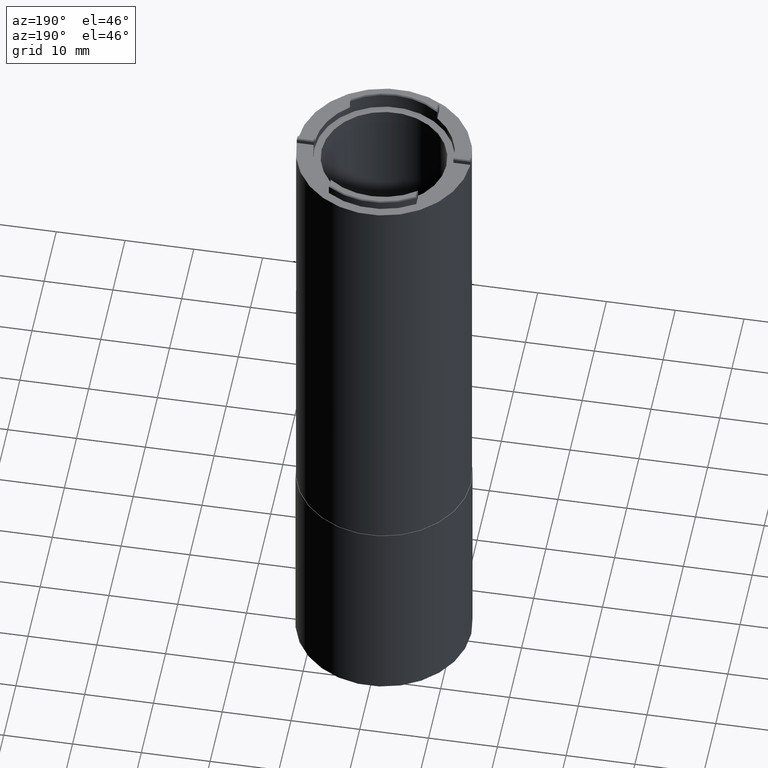
[diagram: clean part render]
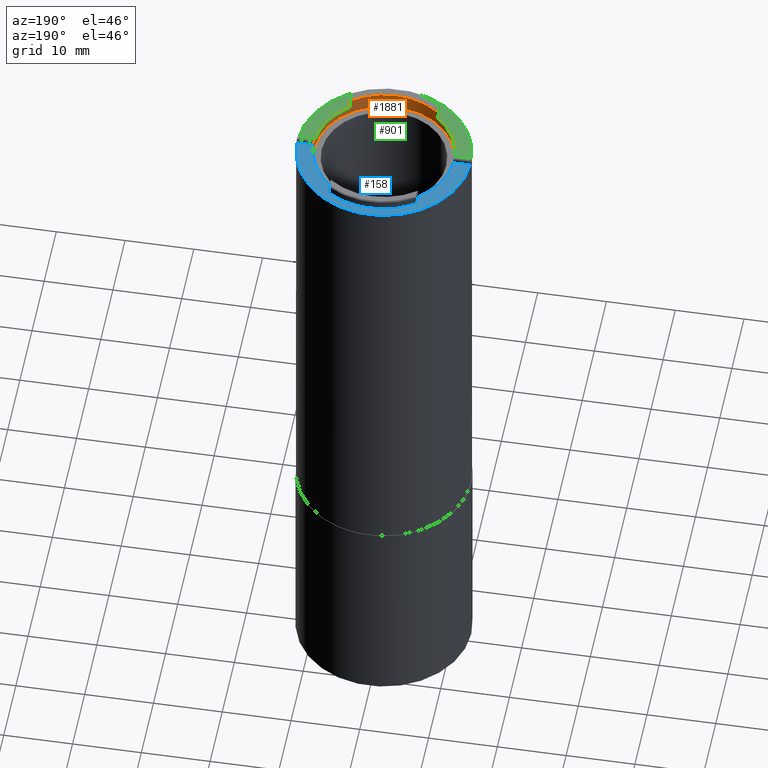
[diagram: same view with three faces highlighted in distinct colors, each labeled with its STEP entity id]
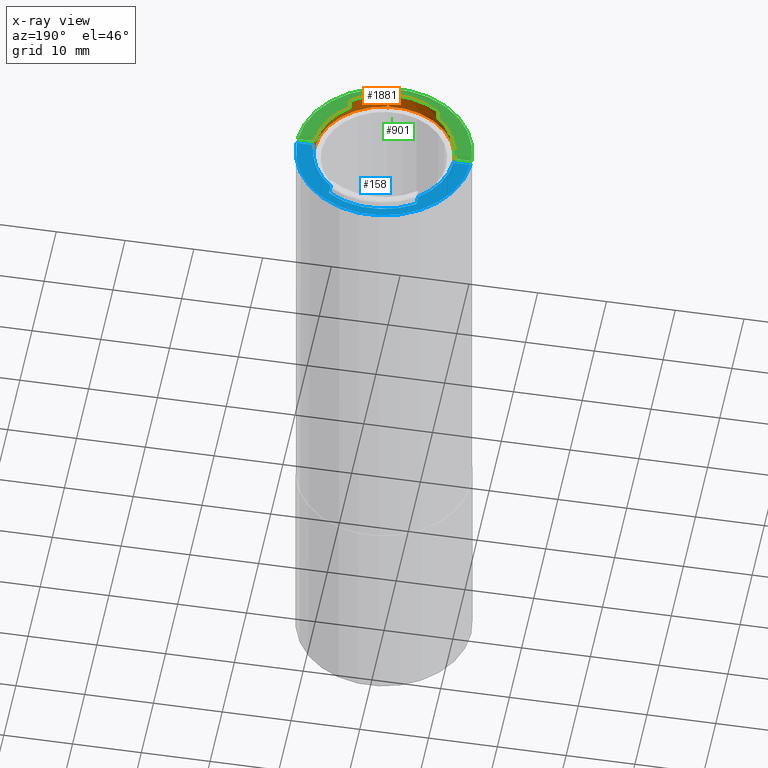
[diagram: x-ray of the same camera — body ghosted, the three highlighted faces saturated]
A machine part, auxiliary view with three faces highlighted in distinct colors.
The next image is the same camera in x-ray (body ghosted, the three faces saturated) — at least one of them is partly hidden behind the body in this view.
Their STEP definitions:

[orange] entity #1881 — the highlighted cylindrical surface (partial cylindrical patch) has radius 10.16 mm, axis along (-0, -0, 1).
#1 = CIRCLE ( 'NONE', #582, 10.16000000000000014 ) ;
#8 = CARTESIAN_POINT ( 'NONE',  ( 0.000000000000000000, 0.000000000000000000, 95.89000000000000057 ) ) ;
#35 = EDGE_CURVE ( 'NONE', #1388, #1761, #1072, .T. ) ;
#39 = AXIS2_PLACEMENT_3D ( 'NONE', #783, #476, #1195 ) ;
#57 = CARTESIAN_POINT ( 'NONE',  ( 10.15653467741868177, -0.2700102718487127906, 97.73998972815131481 ) ) ;
#60 = VERTEX_POINT ( 'NONE', #262 ) ;
#96 = CARTESIAN_POINT ( 'NONE',  ( 0.000000000000000000, 0.000000000000000000, 98.27999999999998693 ) ) ;
#107 = CARTESIAN_POINT ( 'NONE',  ( -10.16000000000000014, 1.244241147933710864E-15, 95.89000000000000057 ) ) ;
#170 = DIRECTION ( 'NONE',  ( -0.000000000000000000, -0.000000000000000000, 1.000000000000000000 ) ) ;
#255 = CARTESIAN_POINT ( 'NONE',  ( 0.000000000000000000, 0.000000000000000000, 97.03000000000000114 ) ) ;
#262 = CARTESIAN_POINT ( 'NONE',  ( -10.15761783096804649, -0.2200000000000026379, 97.79000000000000625 ) ) ;
#272 = EDGE_CURVE ( 'NONE', #60, #1890, #1759, .T. ) ;
#307 = EDGE_CURVE ( 'NONE', #1105, #1844, #1112, .T. ) ;
#330 = DIRECTION ( 'NONE',  ( 1.000000000000000000, 0.000000000000000000, 0.000000000000000000 ) ) ;
#387 = CIRCLE ( 'NONE', #39, 10.16000000000000014 ) ;
#398 = VERTEX_POINT ( 'NONE', #1518 ) ;
#408 = VECTOR ( 'NONE', #1486, 1000.000000000000000 ) ;
#418 = DIRECTION ( 'NONE',  ( -0.000000000000000000, -0.000000000000000000, -1.000000000000000000 ) ) ;
#445 = AXIS2_PLACEMENT_3D ( 'NONE', #548, #418, #1133 ) ;
#452 = CARTESIAN_POINT ( 'NONE',  ( -10.16000000000000014, 1.244241147933710864E-15, 95.89000000000000057 ) ) ;
#458 = CARTESIAN_POINT ( 'NONE',  ( 10.15761783096804649, -0.2200000000000095768, 97.79000000000000625 ) ) ;
#473 = ORIENTED_EDGE ( 'NONE', *, *, #1843, .T. ) ;
#476 = DIRECTION ( 'NONE',  ( 0.000000000000000000, 0.000000000000000000, 1.000000000000000000 ) ) ;
#491 = CARTESIAN_POINT ( 'NONE',  ( 10.15326056003685906, -0.3699999999999999956, 97.64000000000000057 ) ) ;
#499 = CARTESIAN_POINT ( 'NONE',  ( 10.15326056003685906, -0.3699999999999999956, 97.64000000000000057 ) ) ;
#510 = EDGE_CURVE ( 'NONE', #1148, #1844, #1327, .T. ) ;
#519 = CARTESIAN_POINT ( 'NONE',  ( 10.16000000000000014, 0.000000000000000000, 95.89000000000000057 ) ) ;
#548 = CARTESIAN_POINT ( 'NONE',  ( 0.000000000000000000, 0.000000000000000000, 97.79000000000000625 ) ) ;
#582 = AXIS2_PLACEMENT_3D ( 'NONE', #733, #1619, #1154 ) ;
#606 = DIRECTION ( 'NONE',  ( 1.000000000000000000, 0.000000000000000000, 0.000000000000000000 ) ) ;
#612 = CARTESIAN_POINT ( 'NONE',  ( -10.15653467741868354, -0.2700102718486968589, 97.73998972815131481 ) ) ;
#615 = LINE ( 'NONE', #1059, #1283 ) ;
#639 = ORIENTED_EDGE ( 'NONE', *, *, #1424, .F. ) ;
#640 = EDGE_CURVE ( 'NONE', #60, #1761, #1132, .T. ) ;
#643 = ORIENTED_EDGE ( 'NONE', *, *, #713, .T. ) ;
#650 = CARTESIAN_POINT ( 'NONE',  ( -6.349999999999996092, -7.931147457965970204, 95.89000000000000057 ) ) ;
#690 = CYLINDRICAL_SURFACE ( 'NONE', #1496, 10.16000000000000014 ) ;
#701 = DIRECTION ( 'NONE',  ( 1.000000000000000000, 0.000000000000000000, 0.000000000000000000 ) ) ;
#713 = EDGE_CURVE ( 'NONE', #1148, #1596, #1348, .T. ) ;
#733 = CARTESIAN_POINT ( 'NONE',  ( 0.000000000000000000, 0.000000000000000000, 97.79000000000000625 ) ) ;
#755 = CARTESIAN_POINT ( 'NONE',  ( -6.349999999999996092, -7.931147457965970204, 97.03000000000000114 ) ) ;
#763 = CARTESIAN_POINT ( 'NONE',  ( 0.000000000000000000, 0.000000000000000000, 97.03000000000000114 ) ) ;
#780 = VERTEX_POINT ( 'NONE', #872 ) ;
#783 = CARTESIAN_POINT ( 'NONE',  ( 0.000000000000000000, 0.000000000000000000, 95.89000000000000057 ) ) ;
#784 = FACE_OUTER_BOUND ( 'NONE', #1762, .T. ) ;
#831 = EDGE_CURVE ( 'NONE', #398, #1596, #834, .T. ) ;
#833 = ORIENTED_EDGE ( 'NONE', *, *, #1520, .T. ) ;
#834 = LINE ( 'NONE', #1909, #1300 ) ;
#836 = ORIENTED_EDGE ( 'NONE', *, *, #1878, .F. ) ;
#853 = ORIENTED_EDGE ( 'NONE', *, *, #1361, .F. ) ;
#872 = CARTESIAN_POINT ( 'NONE',  ( 10.15326056003685906, -0.3699999999999999956, 97.03000000000000114 ) ) ;
#893 = VERTEX_POINT ( 'NONE', #458 ) ;
#894 = CIRCLE ( 'NONE', #1194, 10.16000000000000014 ) ;
#896 = CARTESIAN_POINT ( 'NONE',  ( -10.15761783096804649, -0.2200000000000026379, 97.79000000000000625 ) ) ;
#905 = ORIENTED_EDGE ( 'NONE', *, *, #640, .F. ) ;
#979 = VERTEX_POINT ( 'NONE', #1521 ) ;
#1033 = LINE ( 'NONE', #1341, #408 ) ;
#1039 = DIRECTION ( 'NONE',  ( 0.000000000000000000, 0.000000000000000000, 1.000000000000000000 ) ) ;
#1043 = CARTESIAN_POINT ( 'NONE',  ( -10.15326056003685906, -0.3699999999999999956, 95.89000000000000057 ) ) ;
#1044 = CARTESIAN_POINT ( 'NONE',  ( -10.15508222736988486, -0.3200111808489128351, 97.68998881915108257 ) ) ;
#1059 = CARTESIAN_POINT ( 'NONE',  ( 10.16000000000000014, 0.000000000000000000, 95.89000000000000057 ) ) ;
#1063 = ORIENTED_EDGE ( 'NONE', *, *, #307, .T. ) ;
#1072 = LINE ( 'NONE', #107, #1430 ) ;
#1102 = CARTESIAN_POINT ( 'NONE',  ( -6.349999999999996092, -7.931147457965970204, 98.28000000000000114 ) ) ;
#1105 = VERTEX_POINT ( 'NONE', #1834 ) ;
#1112 = CIRCLE ( 'NONE', #1391, 10.16000000000000014 ) ;
#1132 = CIRCLE ( 'NONE', #445, 10.16000000000000014 ) ;
#1133 = DIRECTION ( 'NONE',  ( -1.000000000000000000, 0.000000000000000000, 0.000000000000000000 ) ) ;
#1148 = VERTEX_POINT ( 'NONE', #1102 ) ;
#1153 = VECTOR ( 'NONE', #1695, 1000.000000000000000 ) ;
#1154 = DIRECTION ( 'NONE',  ( 1.000000000000000000, 0.000000000000000000, 0.000000000000000000 ) ) ;
#1168 = DIRECTION ( 'NONE',  ( -0.000000000000000000, -0.000000000000000000, 1.000000000000000000 ) ) ;
#1194 = AXIS2_PLACEMENT_3D ( 'NONE', #255, #1455, #701 ) ;
#1195 = DIRECTION ( 'NONE',  ( 1.000000000000000000, 0.000000000000000000, 0.000000000000000000 ) ) ;
#1216 = LINE ( 'NONE', #1043, #1309 ) ;
#1231 = ORIENTED_EDGE ( 'NONE', *, *, #1698, .T. ) ;
#1274 = ORIENTED_EDGE ( 'NONE', *, *, #272, .T. ) ;
#1283 = VECTOR ( 'NONE', #170, 1000.000000000000000 ) ;
#1284 = ORIENTED_EDGE ( 'NONE', *, *, #1809, .F. ) ;
#1300 = VECTOR ( 'NONE', #1168, 1000.000000000000000 ) ;
#1303 = ORIENTED_EDGE ( 'NONE', *, *, #35, .T. ) ;
#1309 = VECTOR ( 'NONE', #1343, 1000.000000000000000 ) ;
#1327 = LINE ( 'NONE', #650, #1153 ) ;
#1341 = CARTESIAN_POINT ( 'NONE',  ( 10.15326056003685906, -0.3699999999999999956, 95.89000000000000057 ) ) ;
#1343 = DIRECTION ( 'NONE',  ( -0.000000000000000000, -0.000000000000000000, 1.000000000000000000 ) ) ;
#1345 = ORIENTED_EDGE ( 'NONE', *, *, #831, .F. ) ;
#1348 = CIRCLE ( 'NONE', #1566, 10.16000000000000014 ) ;
#1361 = EDGE_CURVE ( 'NONE', #1565, #979, #615, .T. ) ;
#1377 = CARTESIAN_POINT ( 'NONE',  ( -10.15326056003686084, -0.3699999999999999956, 97.64000000000000057 ) ) ;
#1388 = VERTEX_POINT ( 'NONE', #452 ) ;
#1391 = AXIS2_PLACEMENT_3D ( 'NONE', #763, #1039, #606 ) ;
#1409 = CARTESIAN_POINT ( 'NONE',  ( 6.349999999999996092, -7.931147457965970204, 98.28000000000000114 ) ) ;
#1424 = EDGE_CURVE ( 'NONE', #1105, #1890, #1216, .T. ) ;
#1430 = VECTOR ( 'NONE', #1859, 1000.000000000000000 ) ;
#1455 = DIRECTION ( 'NONE',  ( 0.000000000000000000, 0.000000000000000000, 1.000000000000000000 ) ) ;
#1486 = DIRECTION ( 'NONE',  ( 0.000000000000000000, 0.000000000000000000, -1.000000000000000000 ) ) ;
#1488 = CARTESIAN_POINT ( 'NONE',  ( -10.15326056003686084, -0.3699999999999999956, 97.64000000000000057 ) ) ;
#1496 = AXIS2_PLACEMENT_3D ( 'NONE', #8, #1795, #330 ) ;
#1516 = VERTEX_POINT ( 'NONE', #491 ) ;
#1518 = CARTESIAN_POINT ( 'NONE',  ( 6.349999999999996092, -7.931147457965970204, 97.03000000000000114 ) ) ;
#1520 = EDGE_CURVE ( 'NONE', #1516, #893, #1710, .T. ) ;
#1521 = CARTESIAN_POINT ( 'NONE',  ( 10.16000000000000014, 0.000000000000000000, 97.79000000000000625 ) ) ;
#1527 = CARTESIAN_POINT ( 'NONE',  ( 10.15508222736988486, -0.3200111808489264908, 97.68998881915108257 ) ) ;
#1565 = VERTEX_POINT ( 'NONE', #519 ) ;
#1566 = AXIS2_PLACEMENT_3D ( 'NONE', #96, #1713, #1857 ) ;
#1596 = VERTEX_POINT ( 'NONE', #1409 ) ;
#1619 = DIRECTION ( 'NONE',  ( 0.000000000000000000, 0.000000000000000000, 1.000000000000000000 ) ) ;
#1627 = CARTESIAN_POINT ( 'NONE',  ( -10.16000000000000014, 1.244241147933710864E-15, 97.79000000000000625 ) ) ;
#1676 = CARTESIAN_POINT ( 'NONE',  ( 10.15761783096804649, -0.2200000000000095768, 97.79000000000000625 ) ) ;
#1695 = DIRECTION ( 'NONE',  ( 0.000000000000000000, 0.000000000000000000, -1.000000000000000000 ) ) ;
#1698 = EDGE_CURVE ( 'NONE', #398, #780, #894, .T. ) ;
#1710 =( BOUNDED_CURVE ( )  B_SPLINE_CURVE ( 3, ( #499, #1527, #57, #1676 ),
 .UNSPECIFIED., .F., .T. ) 
 B_SPLINE_CURVE_WITH_KNOTS ( ( 4, 4 ),
 ( 4.675963603170105287, 4.690733744582900044 ),
 .UNSPECIFIED. ) 
 CURVE ( )  GEOMETRIC_REPRESENTATION_ITEM ( )  RATIONAL_B_SPLINE_CURVE ( ( 1.000000000000000000, 0.9999818203261795491, 0.9999818203261795491, 1.000000000000000000 ) ) 
 REPRESENTATION_ITEM ( '' )  );
#1713 = DIRECTION ( 'NONE',  ( 0.000000000000000000, 0.000000000000000000, 1.000000000000000000 ) ) ;
#1742 = ORIENTED_EDGE ( 'NONE', *, *, #510, .F. ) ;
#1759 =( BOUNDED_CURVE ( )  B_SPLINE_CURVE ( 3, ( #896, #612, #1044, #1488 ),
 .UNSPECIFIED., .F., .F. ) 
 B_SPLINE_CURVE_WITH_KNOTS ( ( 4, 4 ),
 ( 1.592451562596684633, 1.607221704009480057 ),
 .UNSPECIFIED. ) 
 CURVE ( )  GEOMETRIC_REPRESENTATION_ITEM ( )  RATIONAL_B_SPLINE_CURVE ( ( 1.000000000000000000, 0.9999818203261795491, 0.9999818203261795491, 1.000000000000000000 ) ) 
 REPRESENTATION_ITEM ( '' )  );
#1761 = VERTEX_POINT ( 'NONE', #1627 ) ;
#1762 = EDGE_LOOP ( 'NONE', ( #836, #1303, #905, #1274, #639, #1063, #1742, #643, #1345, #1231, #1284, #833, #473, #853 ) ) ;
#1795 = DIRECTION ( 'NONE',  ( -0.000000000000000000, -0.000000000000000000, 1.000000000000000000 ) ) ;
#1809 = EDGE_CURVE ( 'NONE', #1516, #780, #1033, .T. ) ;
#1834 = CARTESIAN_POINT ( 'NONE',  ( -10.15326056003685906, -0.3699999999999999956, 97.03000000000000114 ) ) ;
#1843 = EDGE_CURVE ( 'NONE', #893, #979, #1, .T. ) ;
#1844 = VERTEX_POINT ( 'NONE', #755 ) ;
#1857 = DIRECTION ( 'NONE',  ( -1.000000000000000000, 0.000000000000000000, 0.000000000000000000 ) ) ;
#1859 = DIRECTION ( 'NONE',  ( -0.000000000000000000, -0.000000000000000000, 1.000000000000000000 ) ) ;
#1878 = EDGE_CURVE ( 'NONE', #1388, #1565, #387, .T. ) ;
#1881 = ADVANCED_FACE ( 'NONE', ( #784 ), #690, .F. ) ;
#1890 = VERTEX_POINT ( 'NONE', #1377 ) ;
#1909 = CARTESIAN_POINT ( 'NONE',  ( 6.349999999999996092, -7.931147457965970204, 95.89000000000000057 ) ) ;

[blue] entity #158 — the highlighted planar face has unit normal (0, 0, 1).
#5 = DIRECTION ( 'NONE',  ( 0.000000000000000000, -1.000000000000000000, 0.000000000000000000 ) ) ;
#111 = VECTOR ( 'NONE', #842, 1000.000000000000000 ) ;
#115 = DIRECTION ( 'NONE',  ( -1.000000000000000000, -0.000000000000000000, -0.000000000000000000 ) ) ;
#122 = VERTEX_POINT ( 'NONE', #590 ) ;
#158 = ADVANCED_FACE ( 'NONE', ( #960 ), #1763, .T. ) ;
#185 = EDGE_CURVE ( 'NONE', #1051, #882, #1276, .T. ) ;
#193 = ORIENTED_EDGE ( 'NONE', *, *, #799, .F. ) ;
#234 = EDGE_LOOP ( 'NONE', ( #295, #957, #1893, #1322, #193, #679, #1417, #1658 ) ) ;
#253 = CARTESIAN_POINT ( 'NONE',  ( 0.000000000000000000, 0.000000000000000000, 97.03000000000000114 ) ) ;
#295 = ORIENTED_EDGE ( 'NONE', *, *, #1321, .F. ) ;
#306 = VERTEX_POINT ( 'NONE', #1478 ) ;
#327 = AXIS2_PLACEMENT_3D ( 'NONE', #1055, #1788, #769 ) ;
#341 = LINE ( 'NONE', #1370, #383 ) ;
#342 = CIRCLE ( 'NONE', #327, 10.16000000000000014 ) ;
#349 = CIRCLE ( 'NONE', #528, 11.33999999999999808 ) ;
#383 = VECTOR ( 'NONE', #1540, 1000.000000000000000 ) ;
#426 = DIRECTION ( 'NONE',  ( 0.000000000000000000, 0.000000000000000000, 1.000000000000000000 ) ) ;
#434 = CARTESIAN_POINT ( 'NONE',  ( -6.349999999999996092, 7.931147457965970204, 97.03000000000000114 ) ) ;
#528 = AXIS2_PLACEMENT_3D ( 'NONE', #253, #1420, #1709 ) ;
#531 = CIRCLE ( 'NONE', #927, 12.63499999999999979 ) ;
#565 = CARTESIAN_POINT ( 'NONE',  ( 9.072958737368971072, 0.3699999999999999956, 97.03000000000000114 ) ) ;
#588 = CARTESIAN_POINT ( 'NONE',  ( 0.000000000000000000, 0.000000000000000000, 97.03000000000000114 ) ) ;
#590 = CARTESIAN_POINT ( 'NONE',  ( 6.349999999999996092, 9.395376522524257368, 97.03000000000000114 ) ) ;
#608 = VERTEX_POINT ( 'NONE', #845 ) ;
#644 = CARTESIAN_POINT ( 'NONE',  ( 10.15326056003685906, 0.3699999999999999956, 97.03000000000000114 ) ) ;
#668 = DIRECTION ( 'NONE',  ( 0.000000000000000000, 0.000000000000000000, 1.000000000000000000 ) ) ;
#679 = ORIENTED_EDGE ( 'NONE', *, *, #185, .F. ) ;
#769 = DIRECTION ( 'NONE',  ( 1.000000000000000000, 0.000000000000000000, 0.000000000000000000 ) ) ;
#799 = EDGE_CURVE ( 'NONE', #882, #306, #1419, .T. ) ;
#829 = VERTEX_POINT ( 'NONE', #1323 ) ;
#842 = DIRECTION ( 'NONE',  ( -0.000000000000000000, 1.000000000000000000, -0.000000000000000000 ) ) ;
#845 = CARTESIAN_POINT ( 'NONE',  ( -12.62958134698058821, 0.3699999999999999956, 97.03000000000000114 ) ) ;
#868 = DIRECTION ( 'NONE',  ( 1.000000000000000000, 0.000000000000000000, -0.000000000000000000 ) ) ;
#882 = VERTEX_POINT ( 'NONE', #434 ) ;
#927 = AXIS2_PLACEMENT_3D ( 'NONE', #1550, #668, #1853 ) ;
#949 = LINE ( 'NONE', #565, #992 ) ;
#957 = ORIENTED_EDGE ( 'NONE', *, *, #1263, .F. ) ;
#960 = FACE_OUTER_BOUND ( 'NONE', #234, .T. ) ;
#992 = VECTOR ( 'NONE', #115, 1000.000000000000000 ) ;
#1032 = VERTEX_POINT ( 'NONE', #644 ) ;
#1051 = VERTEX_POINT ( 'NONE', #1567 ) ;
#1055 = CARTESIAN_POINT ( 'NONE',  ( 0.000000000000000000, 0.000000000000000000, 97.03000000000000114 ) ) ;
#1125 = EDGE_CURVE ( 'NONE', #1288, #608, #531, .T. ) ;
#1146 = EDGE_CURVE ( 'NONE', #122, #1051, #349, .T. ) ;
#1151 = CARTESIAN_POINT ( 'NONE',  ( 0.000000000000000000, 0.000000000000000000, 97.03000000000000114 ) ) ;
#1186 = CARTESIAN_POINT ( 'NONE',  ( -6.349999999999996092, 9.395376522524257368, 97.03000000000000114 ) ) ;
#1203 = EDGE_CURVE ( 'NONE', #829, #122, #1293, .T. ) ;
#1263 = EDGE_CURVE ( 'NONE', #1288, #1032, #949, .T. ) ;
#1276 = LINE ( 'NONE', #1186, #1622 ) ;
#1288 = VERTEX_POINT ( 'NONE', #1747 ) ;
#1293 = LINE ( 'NONE', #1575, #111 ) ;
#1321 = EDGE_CURVE ( 'NONE', #1032, #829, #342, .T. ) ;
#1322 = ORIENTED_EDGE ( 'NONE', *, *, #1459, .F. ) ;
#1323 = CARTESIAN_POINT ( 'NONE',  ( 6.349999999999996092, 7.931147457965970204, 97.03000000000000114 ) ) ;
#1370 = CARTESIAN_POINT ( 'NONE',  ( -9.072958737368971072, 0.3699999999999999956, 97.03000000000000114 ) ) ;
#1417 = ORIENTED_EDGE ( 'NONE', *, *, #1146, .F. ) ;
#1419 = CIRCLE ( 'NONE', #1591, 10.16000000000000014 ) ;
#1420 = DIRECTION ( 'NONE',  ( 0.000000000000000000, 0.000000000000000000, 1.000000000000000000 ) ) ;
#1459 = EDGE_CURVE ( 'NONE', #306, #608, #341, .T. ) ;
#1462 = DIRECTION ( 'NONE',  ( 0.000000000000000000, 0.000000000000000000, 1.000000000000000000 ) ) ;
#1474 = DIRECTION ( 'NONE',  ( 1.000000000000000000, 0.000000000000000000, 0.000000000000000000 ) ) ;
#1478 = CARTESIAN_POINT ( 'NONE',  ( -10.15326056003685906, 0.3699999999999999956, 97.03000000000000114 ) ) ;
#1503 = AXIS2_PLACEMENT_3D ( 'NONE', #1151, #1462, #868 ) ;
#1540 = DIRECTION ( 'NONE',  ( -1.000000000000000000, 0.000000000000000000, 0.000000000000000000 ) ) ;
#1550 = CARTESIAN_POINT ( 'NONE',  ( 0.000000000000000000, 0.000000000000000000, 97.03000000000000114 ) ) ;
#1567 = CARTESIAN_POINT ( 'NONE',  ( -6.349999999999996092, 9.395376522524257368, 97.03000000000000114 ) ) ;
#1575 = CARTESIAN_POINT ( 'NONE',  ( 6.349999999999996092, 9.395376522524257368, 97.03000000000000114 ) ) ;
#1591 = AXIS2_PLACEMENT_3D ( 'NONE', #588, #426, #1474 ) ;
#1622 = VECTOR ( 'NONE', #5, 1000.000000000000000 ) ;
#1658 = ORIENTED_EDGE ( 'NONE', *, *, #1203, .F. ) ;
#1709 = DIRECTION ( 'NONE',  ( 1.000000000000000000, 0.000000000000000000, 0.000000000000000000 ) ) ;
#1747 = CARTESIAN_POINT ( 'NONE',  ( 12.62958134698059176, 0.3699999999999999956, 97.03000000000000114 ) ) ;
#1763 = PLANE ( 'NONE',  #1503 ) ;
#1788 = DIRECTION ( 'NONE',  ( 0.000000000000000000, 0.000000000000000000, 1.000000000000000000 ) ) ;
#1853 = DIRECTION ( 'NONE',  ( 1.000000000000000000, 0.000000000000000000, 0.000000000000000000 ) ) ;
#1893 = ORIENTED_EDGE ( 'NONE', *, *, #1125, .T. ) ;

[green] entity #901 — the highlighted planar face has unit normal (0, 0, 1).
#14 = CIRCLE ( 'NONE', #25, 12.63499999999999979 ) ;
#24 = CARTESIAN_POINT ( 'NONE',  ( 0.000000000000000000, 0.000000000000000000, 97.03000000000000114 ) ) ;
#25 = AXIS2_PLACEMENT_3D ( 'NONE', #1048, #1189, #168 ) ;
#67 = EDGE_LOOP ( 'NONE', ( #1717, #1858, #1397, #653, #209, #715, #1249, #1152 ) ) ;
#154 = DIRECTION ( 'NONE',  ( 1.000000000000000000, 0.000000000000000000, 0.000000000000000000 ) ) ;
#161 = PLANE ( 'NONE',  #859 ) ;
#162 = VERTEX_POINT ( 'NONE', #852 ) ;
#168 = DIRECTION ( 'NONE',  ( 1.000000000000000000, 0.000000000000000000, 0.000000000000000000 ) ) ;
#209 = ORIENTED_EDGE ( 'NONE', *, *, #1698, .F. ) ;
#213 = EDGE_CURVE ( 'NONE', #1373, #1105, #1918, .T. ) ;
#214 = AXIS2_PLACEMENT_3D ( 'NONE', #505, #1380, #481 ) ;
#255 = CARTESIAN_POINT ( 'NONE',  ( 0.000000000000000000, 0.000000000000000000, 97.03000000000000114 ) ) ;
#284 = VERTEX_POINT ( 'NONE', #735 ) ;
#307 = EDGE_CURVE ( 'NONE', #1105, #1844, #1112, .T. ) ;
#313 = CARTESIAN_POINT ( 'NONE',  ( -9.072958737368971072, -0.3699999999999999956, 97.03000000000000114 ) ) ;
#364 = LINE ( 'NONE', #1760, #1491 ) ;
#390 = DIRECTION ( 'NONE',  ( -0.000000000000000000, -1.000000000000000000, -0.000000000000000000 ) ) ;
#394 = VERTEX_POINT ( 'NONE', #478 ) ;
#398 = VERTEX_POINT ( 'NONE', #1518 ) ;
#470 = DIRECTION ( 'NONE',  ( 1.000000000000000000, -0.000000000000000000, -0.000000000000000000 ) ) ;
#478 = CARTESIAN_POINT ( 'NONE',  ( 12.62958134698058821, -0.3700000000000076561, 97.03000000000000114 ) ) ;
#481 = DIRECTION ( 'NONE',  ( -1.000000000000000000, 0.000000000000000000, 0.000000000000000000 ) ) ;
#505 = CARTESIAN_POINT ( 'NONE',  ( 0.000000000000000000, 0.000000000000000000, 97.03000000000000114 ) ) ;
#516 = VECTOR ( 'NONE', #470, 1000.000000000000000 ) ;
#569 = VECTOR ( 'NONE', #390, 1000.000000000000000 ) ;
#606 = DIRECTION ( 'NONE',  ( 1.000000000000000000, 0.000000000000000000, 0.000000000000000000 ) ) ;
#609 = DIRECTION ( 'NONE',  ( 0.000000000000000000, 1.000000000000000000, 0.000000000000000000 ) ) ;
#619 = CARTESIAN_POINT ( 'NONE',  ( -12.62958134698058821, -0.3699999999999999956, 97.03000000000000114 ) ) ;
#653 = ORIENTED_EDGE ( 'NONE', *, *, #1855, .F. ) ;
#701 = DIRECTION ( 'NONE',  ( 1.000000000000000000, 0.000000000000000000, 0.000000000000000000 ) ) ;
#715 = ORIENTED_EDGE ( 'NONE', *, *, #1891, .F. ) ;
#735 = CARTESIAN_POINT ( 'NONE',  ( 6.349999999999996092, -9.395376522524257368, 97.03000000000000114 ) ) ;
#755 = CARTESIAN_POINT ( 'NONE',  ( -6.349999999999996092, -7.931147457965970204, 97.03000000000000114 ) ) ;
#763 = CARTESIAN_POINT ( 'NONE',  ( 0.000000000000000000, 0.000000000000000000, 97.03000000000000114 ) ) ;
#780 = VERTEX_POINT ( 'NONE', #872 ) ;
#852 = CARTESIAN_POINT ( 'NONE',  ( -6.349999999999996092, -9.395376522524257368, 97.03000000000000114 ) ) ;
#859 = AXIS2_PLACEMENT_3D ( 'NONE', #24, #1628, #1358 ) ;
#872 = CARTESIAN_POINT ( 'NONE',  ( 10.15326056003685906, -0.3699999999999999956, 97.03000000000000114 ) ) ;
#894 = CIRCLE ( 'NONE', #1194, 10.16000000000000014 ) ;
#901 = ADVANCED_FACE ( 'NONE', ( #1617 ), #161, .T. ) ;
#915 = LINE ( 'NONE', #1558, #569 ) ;
#925 = EDGE_CURVE ( 'NONE', #1373, #394, #14, .T. ) ;
#1039 = DIRECTION ( 'NONE',  ( 0.000000000000000000, 0.000000000000000000, 1.000000000000000000 ) ) ;
#1048 = CARTESIAN_POINT ( 'NONE',  ( 0.000000000000000000, 0.000000000000000000, 97.03000000000000114 ) ) ;
#1105 = VERTEX_POINT ( 'NONE', #1834 ) ;
#1112 = CIRCLE ( 'NONE', #1391, 10.16000000000000014 ) ;
#1152 = ORIENTED_EDGE ( 'NONE', *, *, #1599, .F. ) ;
#1189 = DIRECTION ( 'NONE',  ( 0.000000000000000000, 0.000000000000000000, 1.000000000000000000 ) ) ;
#1194 = AXIS2_PLACEMENT_3D ( 'NONE', #255, #1455, #701 ) ;
#1249 = ORIENTED_EDGE ( 'NONE', *, *, #1500, .F. ) ;
#1358 = DIRECTION ( 'NONE',  ( 1.000000000000000000, 0.000000000000000000, -0.000000000000000000 ) ) ;
#1373 = VERTEX_POINT ( 'NONE', #619 ) ;
#1380 = DIRECTION ( 'NONE',  ( 0.000000000000000000, 0.000000000000000000, 1.000000000000000000 ) ) ;
#1391 = AXIS2_PLACEMENT_3D ( 'NONE', #763, #1039, #606 ) ;
#1397 = ORIENTED_EDGE ( 'NONE', *, *, #925, .T. ) ;
#1455 = DIRECTION ( 'NONE',  ( 0.000000000000000000, 0.000000000000000000, 1.000000000000000000 ) ) ;
#1491 = VECTOR ( 'NONE', #154, 1000.000000000000000 ) ;
#1500 = EDGE_CURVE ( 'NONE', #162, #284, #1830, .T. ) ;
#1518 = CARTESIAN_POINT ( 'NONE',  ( 6.349999999999996092, -7.931147457965970204, 97.03000000000000114 ) ) ;
#1558 = CARTESIAN_POINT ( 'NONE',  ( -6.349999999999996092, -9.395376522524257368, 97.03000000000000114 ) ) ;
#1599 = EDGE_CURVE ( 'NONE', #1844, #162, #915, .T. ) ;
#1617 = FACE_OUTER_BOUND ( 'NONE', #67, .T. ) ;
#1628 = DIRECTION ( 'NONE',  ( 0.000000000000000000, 0.000000000000000000, 1.000000000000000000 ) ) ;
#1639 = CARTESIAN_POINT ( 'NONE',  ( 6.349999999999996092, -9.395376522524257368, 97.03000000000000114 ) ) ;
#1677 = VECTOR ( 'NONE', #609, 1000.000000000000000 ) ;
#1698 = EDGE_CURVE ( 'NONE', #398, #780, #894, .T. ) ;
#1717 = ORIENTED_EDGE ( 'NONE', *, *, #307, .F. ) ;
#1760 = CARTESIAN_POINT ( 'NONE',  ( 9.072958737368971072, -0.3699999999999999956, 97.03000000000000114 ) ) ;
#1811 = LINE ( 'NONE', #1639, #1677 ) ;
#1830 = CIRCLE ( 'NONE', #214, 11.33999999999999808 ) ;
#1834 = CARTESIAN_POINT ( 'NONE',  ( -10.15326056003685906, -0.3699999999999999956, 97.03000000000000114 ) ) ;
#1844 = VERTEX_POINT ( 'NONE', #755 ) ;
#1855 = EDGE_CURVE ( 'NONE', #780, #394, #364, .T. ) ;
#1858 = ORIENTED_EDGE ( 'NONE', *, *, #213, .F. ) ;
#1891 = EDGE_CURVE ( 'NONE', #284, #398, #1811, .T. ) ;
#1918 = LINE ( 'NONE', #313, #516 ) ;